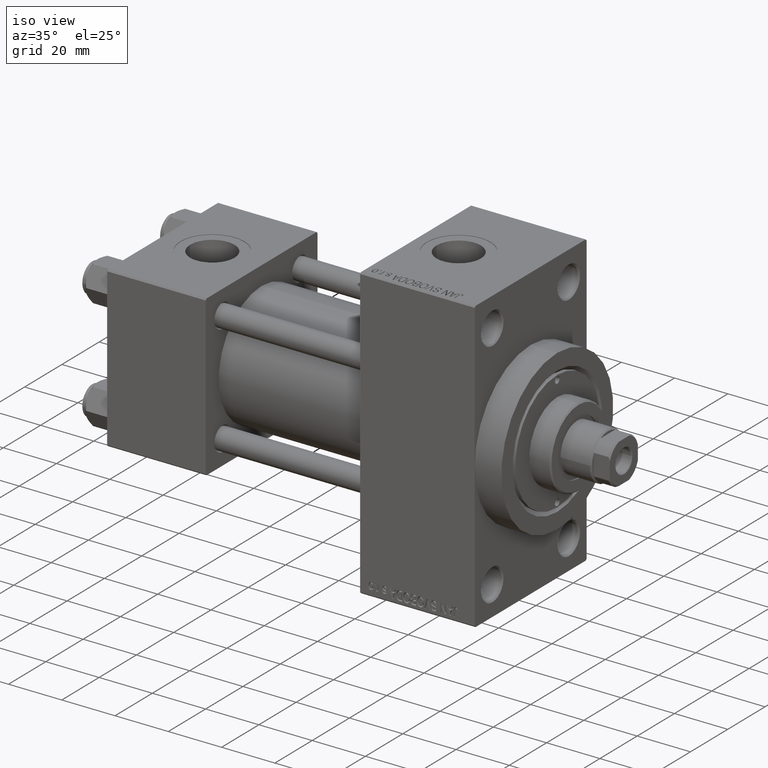
[diagram: clean part render]
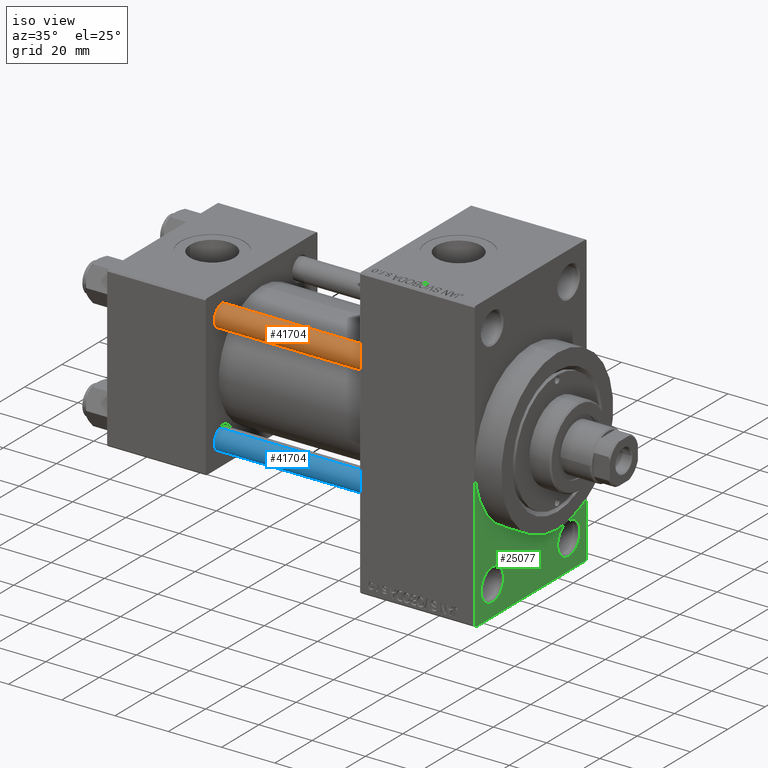
[diagram: same view with three faces highlighted in distinct colors, each labeled with its STEP entity id]
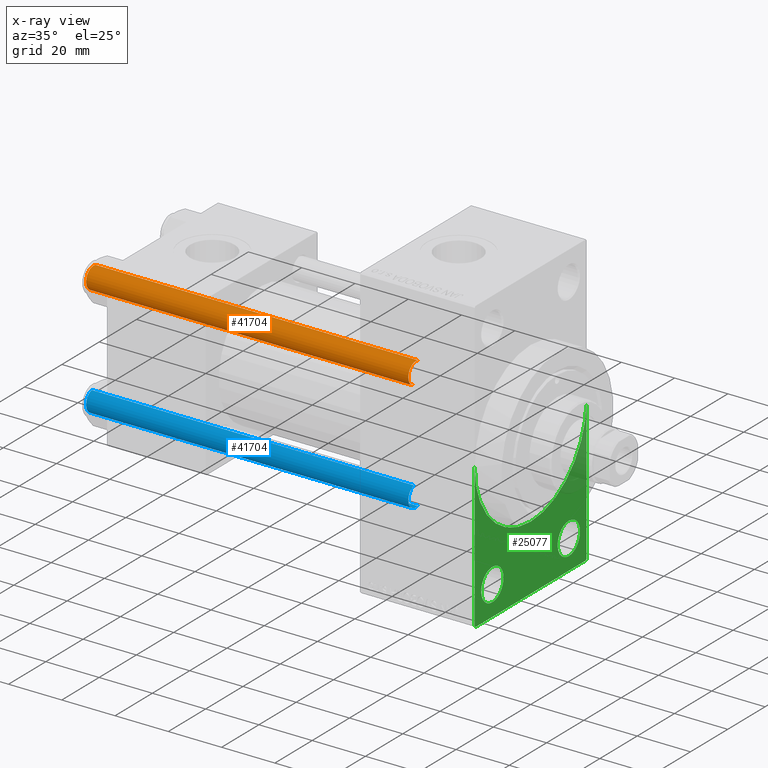
[diagram: x-ray of the same camera — body ghosted, the three highlighted faces saturated]
A machine part, iso view with three faces highlighted in distinct colors.
The next image is the same camera in x-ray (body ghosted, the three faces saturated) — at least one of them is partly hidden behind the body in this view.
Their STEP definitions:

[orange] entity #41704 — the highlighted cylindrical surface (edge-blend (fillet) strip) has radius 4 mm, axis along (1, 0, 0).
#310 = AXIS2_PLACEMENT_3D ( 'NONE', #45401, #11088, #45905 ) ;
#1865 = CYLINDRICAL_SURFACE ( 'NONE', #27523, 4.000000000000000000 ) ;
#3306 = DIRECTION ( 'NONE',  ( -0.000000000000000000, -0.000000000000000000, -1.000000000000000000 ) ) ;
#6566 = CARTESIAN_POINT ( 'NONE',  ( 4.000000000000000000, 4.898587196589411843E-16, 0.5000000000000559552 ) ) ;
#7155 = EDGE_CURVE ( 'NONE', #29593, #13588, #49437, .T. ) ;
#11088 = DIRECTION ( 'NONE',  ( 0.000000000000000000, 0.000000000000000000, -1.000000000000000000 ) ) ;
#13137 = DIRECTION ( 'NONE',  ( -1.000000000000000000, 0.000000000000000000, 0.000000000000000000 ) ) ;
#13588 = VERTEX_POINT ( 'NONE', #6566 ) ;
#14215 = ORIENTED_EDGE ( 'NONE', *, *, #40678, .T. ) ;
#14704 = ORIENTED_EDGE ( 'NONE', *, *, #14865, .T. ) ;
#14865 = EDGE_CURVE ( 'NONE', #13588, #42618, #48627, .T. ) ;
#14887 = CARTESIAN_POINT ( 'NONE',  ( 4.000000000000000000, 4.898587196589411843E-16, 122.0000000000000000 ) ) ;
#17871 = CARTESIAN_POINT ( 'NONE',  ( 0.000000000000000000, 0.000000000000000000, 122.0000000000000000 ) ) ;
#19204 = DIRECTION ( 'NONE',  ( 1.000000000000000000, 0.000000000000000000, 0.000000000000000000 ) ) ;
#19268 = ORIENTED_EDGE ( 'NONE', *, *, #7155, .T. ) ;
#20463 = VECTOR ( 'NONE', #3306, 1000.000000000000000 ) ;
#22720 = VECTOR ( 'NONE', #26658, 1000.000000000000000 ) ;
#23378 = VERTEX_POINT ( 'NONE', #40683 ) ;
#23465 = DIRECTION ( 'NONE',  ( -0.000000000000000000, -0.000000000000000000, 1.000000000000000000 ) ) ;
#25851 = CARTESIAN_POINT ( 'NONE',  ( -4.000000000000000000, 0.000000000000000000, 122.0000000000000000 ) ) ;
#25897 = ORIENTED_EDGE ( 'NONE', *, *, #38893, .F. ) ;
#26658 = DIRECTION ( 'NONE',  ( -0.000000000000000000, -0.000000000000000000, -1.000000000000000000 ) ) ;
#26717 = CARTESIAN_POINT ( 'NONE',  ( 4.000000000000000000, 4.898587196589411843E-16, 121.5000000000000426 ) ) ;
#27045 = AXIS2_PLACEMENT_3D ( 'NONE', #42000, #23465, #19204 ) ;
#27523 = AXIS2_PLACEMENT_3D ( 'NONE', #17871, #43939, #13137 ) ;
#29396 = FACE_OUTER_BOUND ( 'NONE', #49120, .T. ) ;
#29593 = VERTEX_POINT ( 'NONE', #26717 ) ;
#29891 = CIRCLE ( 'NONE', #310, 4.000000000000000000 ) ;
#34270 = CARTESIAN_POINT ( 'NONE',  ( -4.000000000000000000, 0.000000000000000000, 0.5000000000000559552 ) ) ;
#34365 = LINE ( 'NONE', #25851, #20463 ) ;
#38893 = EDGE_CURVE ( 'NONE', #23378, #42618, #34365, .T. ) ;
#40678 = EDGE_CURVE ( 'NONE', #23378, #29593, #29891, .T. ) ;
#40683 = CARTESIAN_POINT ( 'NONE',  ( -4.000000000000000000, 0.000000000000000000, 121.5000000000000426 ) ) ;
#41704 = ADVANCED_FACE ( 'NONE', ( #29396 ), #1865, .T. ) ;
#42000 = CARTESIAN_POINT ( 'NONE',  ( 0.000000000000000000, 0.000000000000000000, 0.5000000000000559552 ) ) ;
#42618 = VERTEX_POINT ( 'NONE', #34270 ) ;
#43939 = DIRECTION ( 'NONE',  ( -0.000000000000000000, -0.000000000000000000, -1.000000000000000000 ) ) ;
#45401 = CARTESIAN_POINT ( 'NONE',  ( 0.000000000000000000, 0.000000000000000000, 121.5000000000000426 ) ) ;
#45905 = DIRECTION ( 'NONE',  ( 1.000000000000000000, 0.000000000000000000, 0.000000000000000000 ) ) ;
#48627 = CIRCLE ( 'NONE', #27045, 4.000000000000000000 ) ;
#49120 = EDGE_LOOP ( 'NONE', ( #14215, #19268, #14704, #25897 ) ) ;
#49437 = LINE ( 'NONE', #14887, #22720 ) ;

[blue] entity #41704 — the highlighted cylindrical surface (edge-blend (fillet) strip) has radius 4 mm, axis along (-1, 0, 0).
#310 = AXIS2_PLACEMENT_3D ( 'NONE', #45401, #11088, #45905 ) ;
#1865 = CYLINDRICAL_SURFACE ( 'NONE', #27523, 4.000000000000000000 ) ;
#3306 = DIRECTION ( 'NONE',  ( -0.000000000000000000, -0.000000000000000000, -1.000000000000000000 ) ) ;
#6566 = CARTESIAN_POINT ( 'NONE',  ( 4.000000000000000000, 4.898587196589411843E-16, 0.5000000000000559552 ) ) ;
#7155 = EDGE_CURVE ( 'NONE', #29593, #13588, #49437, .T. ) ;
#11088 = DIRECTION ( 'NONE',  ( 0.000000000000000000, 0.000000000000000000, -1.000000000000000000 ) ) ;
#13137 = DIRECTION ( 'NONE',  ( -1.000000000000000000, 0.000000000000000000, 0.000000000000000000 ) ) ;
#13588 = VERTEX_POINT ( 'NONE', #6566 ) ;
#14215 = ORIENTED_EDGE ( 'NONE', *, *, #40678, .T. ) ;
#14704 = ORIENTED_EDGE ( 'NONE', *, *, #14865, .T. ) ;
#14865 = EDGE_CURVE ( 'NONE', #13588, #42618, #48627, .T. ) ;
#14887 = CARTESIAN_POINT ( 'NONE',  ( 4.000000000000000000, 4.898587196589411843E-16, 122.0000000000000000 ) ) ;
#17871 = CARTESIAN_POINT ( 'NONE',  ( 0.000000000000000000, 0.000000000000000000, 122.0000000000000000 ) ) ;
#19204 = DIRECTION ( 'NONE',  ( 1.000000000000000000, 0.000000000000000000, 0.000000000000000000 ) ) ;
#19268 = ORIENTED_EDGE ( 'NONE', *, *, #7155, .T. ) ;
#20463 = VECTOR ( 'NONE', #3306, 1000.000000000000000 ) ;
#22720 = VECTOR ( 'NONE', #26658, 1000.000000000000000 ) ;
#23378 = VERTEX_POINT ( 'NONE', #40683 ) ;
#23465 = DIRECTION ( 'NONE',  ( -0.000000000000000000, -0.000000000000000000, 1.000000000000000000 ) ) ;
#25851 = CARTESIAN_POINT ( 'NONE',  ( -4.000000000000000000, 0.000000000000000000, 122.0000000000000000 ) ) ;
#25897 = ORIENTED_EDGE ( 'NONE', *, *, #38893, .F. ) ;
#26658 = DIRECTION ( 'NONE',  ( -0.000000000000000000, -0.000000000000000000, -1.000000000000000000 ) ) ;
#26717 = CARTESIAN_POINT ( 'NONE',  ( 4.000000000000000000, 4.898587196589411843E-16, 121.5000000000000426 ) ) ;
#27045 = AXIS2_PLACEMENT_3D ( 'NONE', #42000, #23465, #19204 ) ;
#27523 = AXIS2_PLACEMENT_3D ( 'NONE', #17871, #43939, #13137 ) ;
#29396 = FACE_OUTER_BOUND ( 'NONE', #49120, .T. ) ;
#29593 = VERTEX_POINT ( 'NONE', #26717 ) ;
#29891 = CIRCLE ( 'NONE', #310, 4.000000000000000000 ) ;
#34270 = CARTESIAN_POINT ( 'NONE',  ( -4.000000000000000000, 0.000000000000000000, 0.5000000000000559552 ) ) ;
#34365 = LINE ( 'NONE', #25851, #20463 ) ;
#38893 = EDGE_CURVE ( 'NONE', #23378, #42618, #34365, .T. ) ;
#40678 = EDGE_CURVE ( 'NONE', #23378, #29593, #29891, .T. ) ;
#40683 = CARTESIAN_POINT ( 'NONE',  ( -4.000000000000000000, 0.000000000000000000, 121.5000000000000426 ) ) ;
#41704 = ADVANCED_FACE ( 'NONE', ( #29396 ), #1865, .T. ) ;
#42000 = CARTESIAN_POINT ( 'NONE',  ( 0.000000000000000000, 0.000000000000000000, 0.5000000000000559552 ) ) ;
#42618 = VERTEX_POINT ( 'NONE', #34270 ) ;
#43939 = DIRECTION ( 'NONE',  ( -0.000000000000000000, -0.000000000000000000, -1.000000000000000000 ) ) ;
#45401 = CARTESIAN_POINT ( 'NONE',  ( 0.000000000000000000, 0.000000000000000000, 121.5000000000000426 ) ) ;
#45905 = DIRECTION ( 'NONE',  ( 1.000000000000000000, 0.000000000000000000, 0.000000000000000000 ) ) ;
#48627 = CIRCLE ( 'NONE', #27045, 4.000000000000000000 ) ;
#49120 = EDGE_LOOP ( 'NONE', ( #14215, #19268, #14704, #25897 ) ) ;
#49437 = LINE ( 'NONE', #14887, #22720 ) ;

[green] entity #25077 — the highlighted planar face has unit normal (-1, 0, 0).
#525 = FACE_BOUND ( 'NONE', #17777, .T. ) ;
#625 = DIRECTION ( 'NONE',  ( 1.000000000000000000, 0.000000000000000000, 0.000000000000000000 ) ) ;
#1811 = EDGE_LOOP ( 'NONE', ( #4659, #17940 ) ) ;
#1859 = CARTESIAN_POINT ( 'NONE',  ( 138.0000000000000000, 20.50000000000000000, -49.50000000000008527 ) ) ;
#3554 = AXIS2_PLACEMENT_3D ( 'NONE', #22802, #29567, #10532 ) ;
#3577 = VECTOR ( 'NONE', #35889, 1000.000000000000000 ) ;
#3866 = DIRECTION ( 'NONE',  ( 0.000000000000000000, 0.000000000000000000, -1.000000000000000000 ) ) ;
#4460 = DIRECTION ( 'NONE',  ( 0.000000000000000000, 0.000000000000000000, 1.000000000000000000 ) ) ;
#4588 = DIRECTION ( 'NONE',  ( 0.000000000000000000, -1.000000000000000000, -1.156482317317871478E-16 ) ) ;
#4659 = ORIENTED_EDGE ( 'NONE', *, *, #24688, .T. ) ;
#4759 = EDGE_CURVE ( 'NONE', #12218, #5695, #30623, .T. ) ;
#5695 = VERTEX_POINT ( 'NONE', #33779 ) ;
#6746 = ORIENTED_EDGE ( 'NONE', *, *, #46146, .F. ) ;
#6806 = CIRCLE ( 'NONE', #33209, 30.00000000000000000 ) ;
#7910 = AXIS2_PLACEMENT_3D ( 'NONE', #26521, #15761, #22761 ) ;
#7994 = EDGE_CURVE ( 'NONE', #25849, #47076, #46776, .T. ) ;
#9175 = VECTOR ( 'NONE', #43429, 1000.000000000000000 ) ;
#9264 = DIRECTION ( 'NONE',  ( 0.000000000000000000, 0.000000000000000000, -1.000000000000000000 ) ) ;
#9552 = CARTESIAN_POINT ( 'NONE',  ( 138.0000000000000000, -29.50000000000000355, -54.50000000000000000 ) ) ;
#9628 = CARTESIAN_POINT ( 'NONE',  ( 138.0000000000000000, -30.00000000000000000, 0.000000000000000000 ) ) ;
#9936 = ORIENTED_EDGE ( 'NONE', *, *, #4759, .F. ) ;
#10532 = DIRECTION ( 'NONE',  ( 0.000000000000000000, 0.000000000000000000, 1.000000000000000000 ) ) ;
#10876 = EDGE_CURVE ( 'NONE', #47076, #25849, #46044, .T. ) ;
#10924 = ORIENTED_EDGE ( 'NONE', *, *, #7994, .T. ) ;
#11273 = PLANE ( 'NONE',  #22474 ) ;
#11683 = ORIENTED_EDGE ( 'NONE', *, *, #38785, .F. ) ;
#12218 = VERTEX_POINT ( 'NONE', #26463 ) ;
#12342 = CARTESIAN_POINT ( 'NONE',  ( 138.0000000000000000, 29.99999999999999645, -54.49999999999999289 ) ) ;
#12618 = CARTESIAN_POINT ( 'NONE',  ( 138.0000000000000000, 29.99999999999999645, 54.49999999999999289 ) ) ;
#14097 = DIRECTION ( 'NONE',  ( 0.000000000000000000, 0.000000000000000000, -1.000000000000000000 ) ) ;
#14386 = LINE ( 'NONE', #22392, #15158 ) ;
#14555 = VERTEX_POINT ( 'NONE', #48034 ) ;
#15158 = VECTOR ( 'NONE', #3866, 1000.000000000000000 ) ;
#15540 = CARTESIAN_POINT ( 'NONE',  ( 138.0000000000000000, 0.000000000000000000, 0.000000000000000000 ) ) ;
#15761 = DIRECTION ( 'NONE',  ( -1.000000000000000000, 0.000000000000000000, -0.000000000000000000 ) ) ;
#16330 = EDGE_CURVE ( 'NONE', #47164, #35220, #40676, .T. ) ;
#16357 = LINE ( 'NONE', #12342, #21916 ) ;
#16844 = LINE ( 'NONE', #25100, #3577 ) ;
#16877 = CIRCLE ( 'NONE', #30454, 6.000000000000088818 ) ;
#17777 = EDGE_LOOP ( 'NONE', ( #30023, #10924 ) ) ;
#17940 = ORIENTED_EDGE ( 'NONE', *, *, #16330, .T. ) ;
#19448 = EDGE_CURVE ( 'NONE', #31025, #28031, #14386, .T. ) ;
#19654 = CARTESIAN_POINT ( 'NONE',  ( 138.0000000000000000, 0.000000000000000000, 0.000000000000000000 ) ) ;
#20137 = LINE ( 'NONE', #12618, #9175 ) ;
#20480 = DIRECTION ( 'NONE',  ( -1.000000000000000000, 0.000000000000000000, -0.000000000000000000 ) ) ;
#21916 = VECTOR ( 'NONE', #4588, 1000.000000000000000 ) ;
#22031 = AXIS2_PLACEMENT_3D ( 'NONE', #31034, #34285, #42048 ) ;
#22392 = CARTESIAN_POINT ( 'NONE',  ( 138.0000000000000000, -30.00000000000000000, 54.50000000000000000 ) ) ;
#22474 = AXIS2_PLACEMENT_3D ( 'NONE', #15540, #30816, #26066 ) ;
#22761 = DIRECTION ( 'NONE',  ( 0.000000000000000000, 0.000000000000000000, 1.000000000000000000 ) ) ;
#22802 = CARTESIAN_POINT ( 'NONE',  ( 138.0000000000000000, -20.50000000000000000, -43.50000000000000000 ) ) ;
#22851 = ORIENTED_EDGE ( 'NONE', *, *, #41948, .F. ) ;
#23297 = FACE_BOUND ( 'NONE', #1811, .T. ) ;
#24688 = EDGE_CURVE ( 'NONE', #35220, #47164, #16877, .T. ) ;
#25077 = ADVANCED_FACE ( 'NONE', ( #525, #23297, #34834 ), #11273, .F. ) ;
#25100 = CARTESIAN_POINT ( 'NONE',  ( 138.0000000000000000, -29.50000000000000355, -54.50000000000000000 ) ) ;
#25241 = VECTOR ( 'NONE', #46717, 1000.000000000000114 ) ;
#25849 = VERTEX_POINT ( 'NONE', #33961 ) ;
#26066 = DIRECTION ( 'NONE',  ( -0.000000000000000000, 0.000000000000000000, 1.000000000000000000 ) ) ;
#26364 = CARTESIAN_POINT ( 'NONE',  ( 138.0000000000000000, -20.50000000000000000, -49.50000000000008527 ) ) ;
#26372 = ORIENTED_EDGE ( 'NONE', *, *, #46856, .T. ) ;
#26463 = CARTESIAN_POINT ( 'NONE',  ( 138.0000000000000000, 3.673940397442059178E-15, -30.00000000000000000 ) ) ;
#26521 = CARTESIAN_POINT ( 'NONE',  ( 138.0000000000000000, 20.50000000000000000, -43.50000000000000000 ) ) ;
#27156 = VERTEX_POINT ( 'NONE', #49365 ) ;
#27456 = AXIS2_PLACEMENT_3D ( 'NONE', #32547, #43087, #9264 ) ;
#28031 = VERTEX_POINT ( 'NONE', #42172 ) ;
#28089 = ORIENTED_EDGE ( 'NONE', *, *, #19448, .T. ) ;
#29567 = DIRECTION ( 'NONE',  ( -1.000000000000000000, 0.000000000000000000, -0.000000000000000000 ) ) ;
#30023 = ORIENTED_EDGE ( 'NONE', *, *, #10876, .T. ) ;
#30454 = AXIS2_PLACEMENT_3D ( 'NONE', #38754, #20480, #4460 ) ;
#30623 = CIRCLE ( 'NONE', #27456, 30.00000000000000000 ) ;
#30816 = DIRECTION ( 'NONE',  ( -1.000000000000000000, 0.000000000000000000, -0.000000000000000000 ) ) ;
#31025 = VERTEX_POINT ( 'NONE', #9628 ) ;
#31034 = CARTESIAN_POINT ( 'NONE',  ( 138.0000000000000000, -20.50000000000000000, -43.50000000000000000 ) ) ;
#31432 = CARTESIAN_POINT ( 'NONE',  ( 138.0000000000000000, 29.99999999999999645, -53.99999999999999289 ) ) ;
#32547 = CARTESIAN_POINT ( 'NONE',  ( 138.0000000000000000, 0.000000000000000000, 0.000000000000000000 ) ) ;
#33209 = AXIS2_PLACEMENT_3D ( 'NONE', #19654, #625, #14097 ) ;
#33779 = CARTESIAN_POINT ( 'NONE',  ( 138.0000000000000000, 30.00000000000000000, 0.000000000000000000 ) ) ;
#33961 = CARTESIAN_POINT ( 'NONE',  ( 138.0000000000000000, -20.50000000000000000, -37.49999999999990763 ) ) ;
#34285 = DIRECTION ( 'NONE',  ( -1.000000000000000000, 0.000000000000000000, -0.000000000000000000 ) ) ;
#34834 = FACE_OUTER_BOUND ( 'NONE', #37699, .T. ) ;
#35113 = EDGE_CURVE ( 'NONE', #27156, #14555, #35192, .T. ) ;
#35192 = LINE ( 'NONE', #31432, #25241 ) ;
#35220 = VERTEX_POINT ( 'NONE', #1859 ) ;
#35889 = DIRECTION ( 'NONE',  ( 0.000000000000000000, 0.7071067811865352493, -0.7071067811865597852 ) ) ;
#37699 = EDGE_LOOP ( 'NONE', ( #28089, #26372, #22851, #39058, #6746, #9936, #11683 ) ) ;
#38754 = CARTESIAN_POINT ( 'NONE',  ( 138.0000000000000000, 20.50000000000000000, -43.50000000000000000 ) ) ;
#38785 = EDGE_CURVE ( 'NONE', #31025, #12218, #6806, .T. ) ;
#39058 = ORIENTED_EDGE ( 'NONE', *, *, #35113, .T. ) ;
#39118 = VERTEX_POINT ( 'NONE', #9552 ) ;
#40676 = CIRCLE ( 'NONE', #7910, 6.000000000000088818 ) ;
#41948 = EDGE_CURVE ( 'NONE', #27156, #39118, #16357, .T. ) ;
#42048 = DIRECTION ( 'NONE',  ( 0.000000000000000000, 0.000000000000000000, 1.000000000000000000 ) ) ;
#42172 = CARTESIAN_POINT ( 'NONE',  ( 138.0000000000000000, -30.00000000000000000, -53.99999999999998579 ) ) ;
#43087 = DIRECTION ( 'NONE',  ( 1.000000000000000000, 0.000000000000000000, 0.000000000000000000 ) ) ;
#43429 = DIRECTION ( 'NONE',  ( 0.000000000000000000, 0.000000000000000000, -1.000000000000000000 ) ) ;
#46044 = CIRCLE ( 'NONE', #22031, 6.000000000000088818 ) ;
#46146 = EDGE_CURVE ( 'NONE', #5695, #14555, #20137, .T. ) ;
#46717 = DIRECTION ( 'NONE',  ( -0.000000000000000000, 0.7071067811865474617, 0.7071067811865474617 ) ) ;
#46776 = CIRCLE ( 'NONE', #3554, 6.000000000000088818 ) ;
#46856 = EDGE_CURVE ( 'NONE', #28031, #39118, #16844, .T. ) ;
#47076 = VERTEX_POINT ( 'NONE', #26364 ) ;
#47164 = VERTEX_POINT ( 'NONE', #47396 ) ;
#47396 = CARTESIAN_POINT ( 'NONE',  ( 138.0000000000000000, 20.50000000000000000, -37.49999999999990763 ) ) ;
#48034 = CARTESIAN_POINT ( 'NONE',  ( 138.0000000000000000, 29.99999999999999645, -53.99999999999999289 ) ) ;
#49365 = CARTESIAN_POINT ( 'NONE',  ( 138.0000000000000000, 29.49999999999999645, -54.49999999999999289 ) ) ;